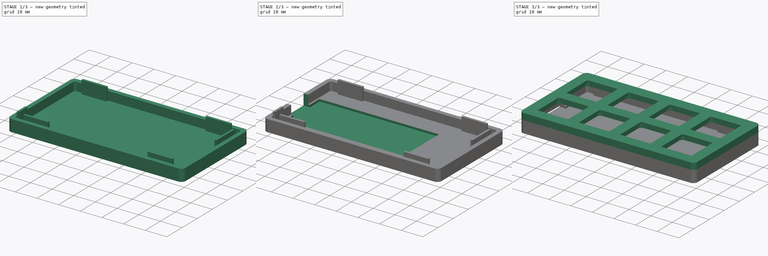
[diagram: build sequence overview — one tinted view per stage of 3, left to right]
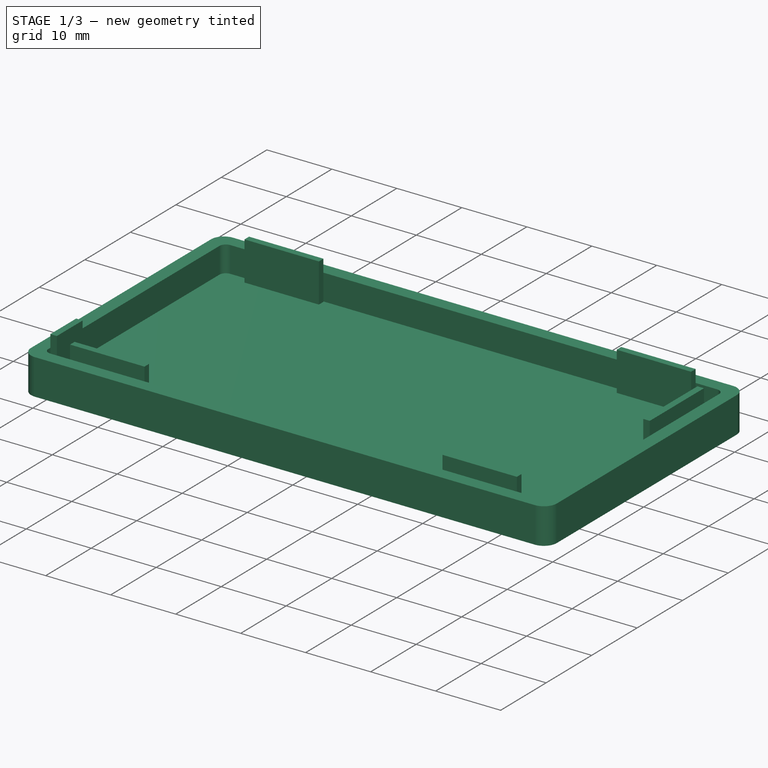
[diagram: stage 1 of 3 — iso view after this stage's code; geometry added in this stage tinted green]
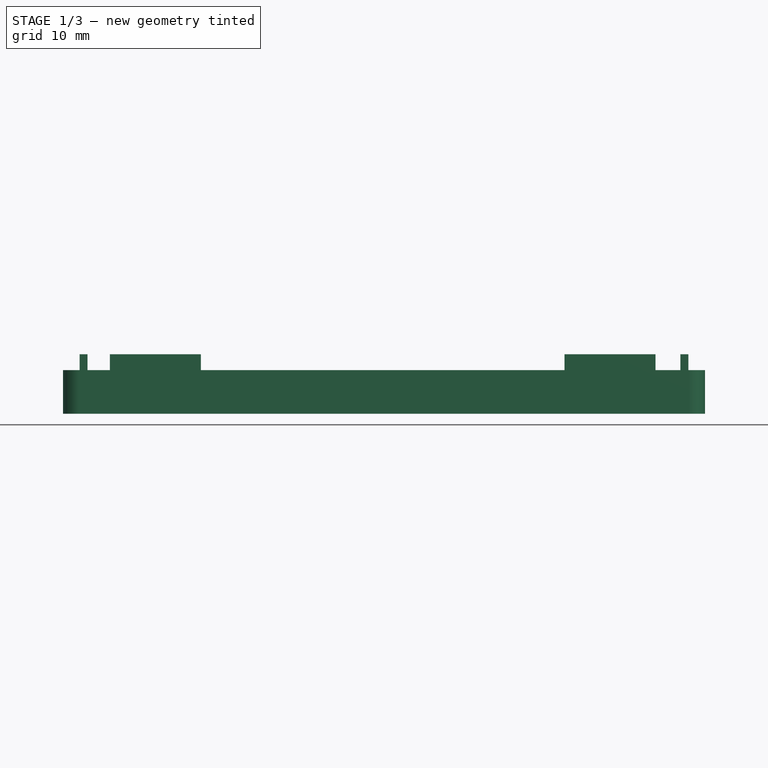
[diagram: stage 1 of 3 — front view after this stage's code; geometry added in this stage tinted green]
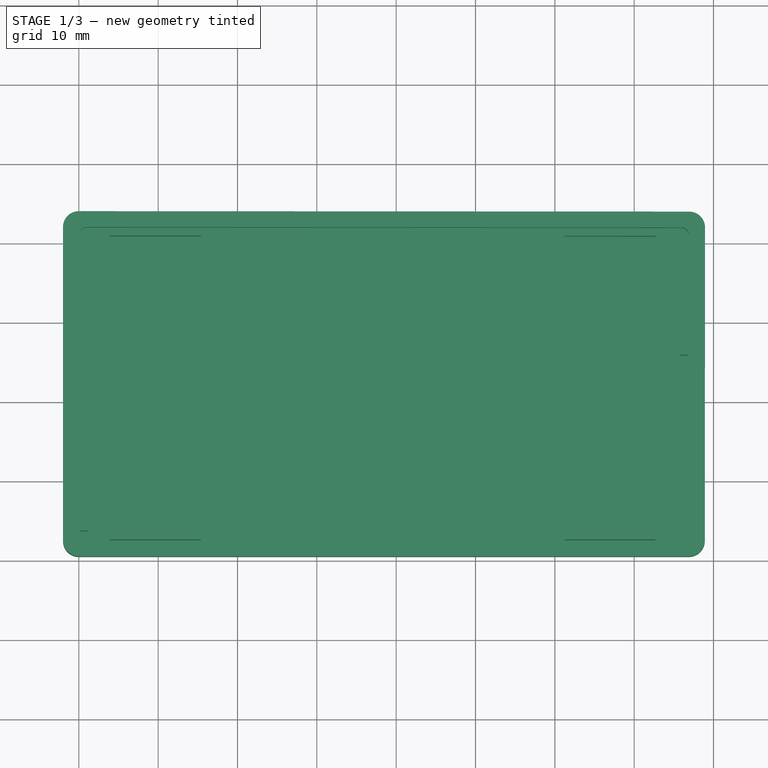
[diagram: stage 1 of 3 — top view after this stage's code; geometry added in this stage tinted green]
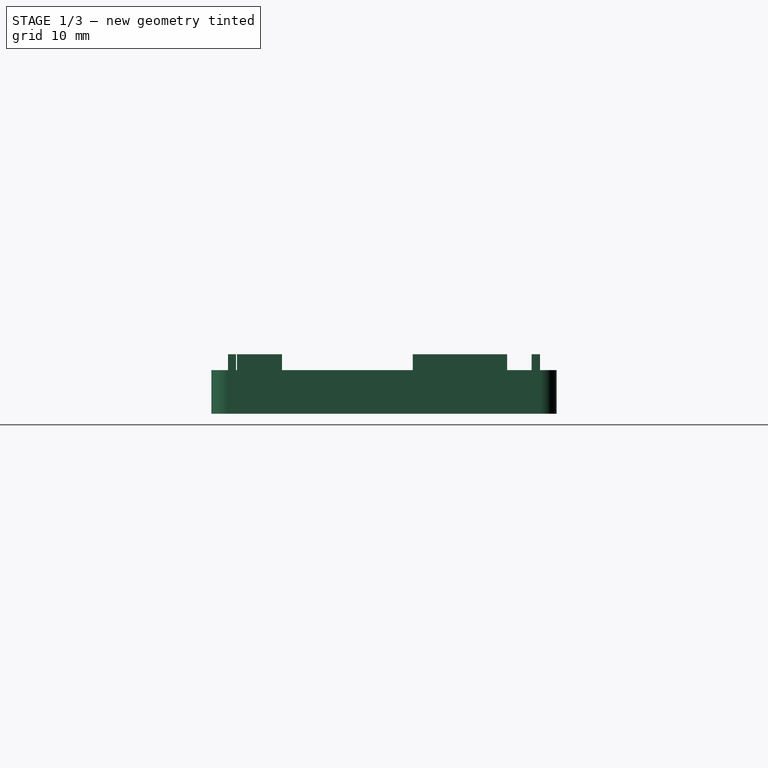
[diagram: stage 1 of 3 — right view after this stage's code; geometry added in this stage tinted green]
FCSTD DOCUMENT  (FreeCAD 0.20R29177 +426 (Git))
Label: ARTSEYIO
License: All rights reserved
LicenseURL: http://en.wikipedia.org/wiki/All_rights_reserved
objects: Sketcher::SketchObject×9, PartDesign::Pad×5, PartDesign::Pocket×3, PartDesign::Body×2
note: 27 computed .brp shape members not serialized (recipe doc carries the construction recipe); baked Part::Feature solids carry a one-line shape summary decoded from their .brp

FEATURE [PartDesign::Body] Body  label="Base_SW_D"
  Group = -> [Sketch,Pad,Sketch002,Pocket,Sketch003,Pad001]
  Origin = -> Origin
  Tip = -> Pad001
FEATURE [Sketcher::SketchObject] Sketch004  label="Sketch_contorno002"
  FullyConstrained = false
  sketch-geometry (16):
    g0: ArcOfCircle CenterX=0.999996 CenterY=-28.9893 CenterZ=0 NormalX=0 NormalY=0 NormalZ=1 AngleXU=0 Radius=1 StartAngle=1.5701 EndAngle=3.14089
    g1: LineSegment StartX=-4.22376e-06 StartY=-28.9886 StartZ=0 EndX=-0.0261956 EndY=-66.5049 EndZ=0
    g2: ArcOfCircle CenterX=0.973804 CenterY=-66.5056 CenterZ=0 NormalX=0 NormalY=0 NormalZ=1 AngleXU=0 Radius=1 StartAngle=3.14089 EndAngle=4.71239
    g3: ArcOfCircle CenterX=-3.73637e-06 CenterY=-67.5056 CenterZ=0 NormalX=0 NormalY=0 NormalZ=1 AngleXU=0 Radius=2 StartAngle=3.14159 EndAngle=4.71239
    g4: LineSegment StartX=-2 StartY=-27.9886 StartZ=0 EndX=-2 EndY=-67.5056 EndZ=0
    g5: ArcOfCircle CenterX=-3.73637e-06 CenterY=-27.9886 CenterZ=0 NormalX=0 NormalY=0 NormalZ=1 AngleXU=0 Radius=2 StartAngle=1.5701 EndAngle=3.14159
    g6: LineSegment StartX=76.9325 StartY=-26.0423 StartZ=0 EndX=0.00139253 EndY=-25.9886 EndZ=0
    g7: ArcOfCircle CenterX=76.9311 CenterY=-28.0423 CenterZ=0 NormalX=0 NormalY=0 NormalZ=1 AngleXU=0 Radius=2 StartAngle=6.28249 EndAngle=7.85328
    g8: LineSegment StartX=78.9311 StartY=-28.0437 StartZ=0 EndX=78.9036 EndY=-67.5068 EndZ=0
    g9: LineSegment StartX=76.9036 StartY=-69.5054 StartZ=0 EndX=0 EndY=-69.5056 EndZ=0
    g10: ArcOfCircle CenterX=76.9036 CenterY=-67.5054 CenterZ=0 NormalX=0 NormalY=0 NormalZ=1 AngleXU=0 Radius=2 StartAngle=4.71239 EndAngle=6.28249
    g11: LineSegment StartX=75.9311 StartY=-28.0416 StartZ=0 EndX=1.00069 EndY=-27.9893 EndZ=0
    g12: ArcOfCircle CenterX=75.9304 CenterY=-29.0416 CenterZ=0 NormalX=0 NormalY=0 NormalZ=1 AngleXU=0 Radius=1 StartAngle=6.28249 EndAngle=7.85328
    g13: LineSegment StartX=76.9304 StartY=-29.0423 StartZ=0 EndX=76.9043 EndY=-66.5061 EndZ=0
    g14: LineSegment StartX=75.9043 StartY=-67.5054 StartZ=0 EndX=0.973806 EndY=-67.5056 EndZ=0
    g15: ArcOfCircle CenterX=75.9043 CenterY=-66.5054 CenterZ=0 NormalX=0 NormalY=0 NormalZ=1 AngleXU=0 Radius=1 StartAngle=4.71239 EndAngle=6.28249
  constraints (15):
    c: Coincident(g3,g4)
    c: Coincident(g4,g5)
    c: Coincident(g3,g9)
    c: Coincident(g0,g1)
    c: Coincident(g5,g6)
    c: Coincident(g2,g14)
    c: Coincident(g0,g11)
    c: Coincident(g14,g15)
    c: Coincident(g11,g12)
    c: Coincident(g9,g10)
    c: Coincident(g13,g15)
    c: Coincident(g12,g13)
    c: Coincident(g6,g7)
    c: Coincident(g8,g10)
    c: Coincident(g7,g8)
FEATURE [Sketcher::SketchObject] Sketch005  label="Sketch_contorno003"
  FullyConstrained = false
  Placement = pos=(0,0,-4) rot=(0,0,1;0rad)
  sketch-geometry (8):
    g0: ArcOfCircle CenterX=-3.73637e-06 CenterY=-67.5056 CenterZ=0 NormalX=0 NormalY=0 NormalZ=1 AngleXU=0 Radius=2 StartAngle=3.14159 EndAngle=4.71239
    g1: LineSegment StartX=-2 StartY=-27.9886 StartZ=0 EndX=-2 EndY=-67.5056 EndZ=0
    g2: ArcOfCircle CenterX=-3.73637e-06 CenterY=-27.9886 CenterZ=0 NormalX=0 NormalY=0 NormalZ=1 AngleXU=0 Radius=2 StartAngle=1.5701 EndAngle=3.14159
    g3: LineSegment StartX=76.9325 StartY=-26.0423 StartZ=0 EndX=0.00139253 EndY=-25.9886 EndZ=0
    g4: ArcOfCircle CenterX=76.9311 CenterY=-28.0423 CenterZ=0 NormalX=0 NormalY=0 NormalZ=1 AngleXU=0 Radius=2 StartAngle=6.28249 EndAngle=7.85328
    g5: LineSegment StartX=78.9311 StartY=-28.0437 StartZ=0 EndX=78.9036 EndY=-67.5068 EndZ=0
    g6: LineSegment StartX=76.9036 StartY=-69.5054 StartZ=0 EndX=0 EndY=-69.5056 EndZ=0
    g7: ArcOfCircle CenterX=76.9036 CenterY=-67.5054 CenterZ=0 NormalX=0 NormalY=0 NormalZ=1 AngleXU=0 Radius=2 StartAngle=4.71239 EndAngle=6.28249
  constraints (8):
    c: Coincident(g0,g1)
    c: Coincident(g1,g2)
    c: Coincident(g0,g6)
    c: Coincident(g2,g3)
    c: Coincident(g6,g7)
    c: Coincident(g3,g4)
    c: Coincident(g5,g7)
    c: Coincident(g4,g5)
FEATURE [PartDesign::Pad] Pad002
  Direction = (0,0,1)
  Length = 4
  Length2 = 10
  Profile = -> Sketch004
  ReferenceAxis = -> Sketch004 [N_Axis]
  Reversed = true
  Type = 0
FEATURE [PartDesign::Pad] Pad003
  BaseFeature = -> Pad002
  Direction = (0,0,1)
  Length = 1.5
  Length2 = 10
  Profile = -> Sketch005
  ReferenceAxis = -> Sketch005 [N_Axis]
  Reversed = true
  Type = 0
FEATURE [Sketcher::SketchObject] Sketch006  label="Sketch_contorno004"
  FullyConstrained = false
  Placement = pos=(0,0,-4) rot=(0,0,1;0rad)
  sketch-geometry (24):
    g0: LineSegment StartX=15.3732 StartY=-67.4055 StartZ=0 EndX=15.3739 EndY=-66.4055 EndZ=0
    g1: LineSegment StartX=15.3732 StartY=-67.4055 StartZ=0 EndX=3.9183 EndY=-67.4056 EndZ=0
    g2: LineSegment StartX=15.3739 StartY=-66.4055 StartZ=0 EndX=3.919 EndY=-66.4056 EndZ=0
    g3: LineSegment StartX=3.9183 StartY=-67.4056 StartZ=0 EndX=3.919 EndY=-66.4056 EndZ=0
    g4: LineSegment StartX=72.6781 StartY=-67.4055 StartZ=0 EndX=72.6788 EndY=-66.4055 EndZ=0
    g5: LineSegment StartX=72.6781 StartY=-67.4055 StartZ=0 EndX=61.2233 EndY=-67.4056 EndZ=0
    g6: LineSegment StartX=72.6788 StartY=-66.4055 StartZ=0 EndX=61.224 EndY=-66.4056 EndZ=0
    g7: LineSegment StartX=61.2233 StartY=-67.4056 StartZ=0 EndX=61.224 EndY=-66.4056 EndZ=0
    g8: LineSegment StartX=15.3872 StartY=-28.0989 StartZ=0 EndX=15.3872 EndY=-29.0989 EndZ=0
    g9: LineSegment StartX=15.3872 StartY=-28.0989 StartZ=0 EndX=3.93234 EndY=-28.0907 EndZ=0
    g10: LineSegment StartX=15.3872 StartY=-29.0989 StartZ=0 EndX=3.93233 EndY=-29.0907 EndZ=0
    g11: LineSegment StartX=3.93234 StartY=-28.0907 StartZ=0 EndX=3.93233 EndY=-29.0907 EndZ=0
    g12: LineSegment StartX=72.6921 StartY=-28.1398 StartZ=0 EndX=72.6921 EndY=-29.1398 EndZ=0
    g13: LineSegment StartX=72.6921 StartY=-28.1398 StartZ=0 EndX=61.2373 EndY=-28.1316 EndZ=0
    g14: LineSegment StartX=72.6921 StartY=-29.1398 StartZ=0 EndX=61.2373 EndY=-29.1316 EndZ=0
    g15: LineSegment StartX=61.2373 StartY=-28.1316 StartZ=0 EndX=61.2373 EndY=-29.1316 EndZ=0
    g16: LineSegment StartX=76.833 StartY=-32.2305 StartZ=0 EndX=75.833 EndY=-32.2298 EndZ=0
    g17: LineSegment StartX=76.833 StartY=-32.2305 StartZ=0 EndX=76.8247 EndY=-44.1239 EndZ=0
    g18: LineSegment StartX=75.833 StartY=-32.2298 StartZ=0 EndX=75.8247 EndY=-44.1232 EndZ=0
    g19: LineSegment StartX=76.8247 StartY=-44.1239 StartZ=0 EndX=75.8247 EndY=-44.1232 EndZ=0
    g20: LineSegment StartX=0.0961904 StartY=-66.2743 StartZ=0 EndX=1.09619 EndY=-66.2743 EndZ=0
    g21: LineSegment StartX=0.0960912 StartY=-60.5987 StartZ=0 EndX=0.0961904 EndY=-66.2743 EndZ=0
    g22: LineSegment StartX=1.09609 StartY=-60.5986 StartZ=0 EndX=1.09619 EndY=-66.2743 EndZ=0
    g23: LineSegment StartX=0.0960912 StartY=-60.5987 StartZ=0 EndX=1.09609 EndY=-60.5986 EndZ=0
  constraints (24):
    c: Coincident(g20,g21)
    c: Coincident(g21,g23)
    c: Coincident(g20,g22)
    c: Coincident(g22,g23)
    c: Coincident(g1,g3)
    c: Coincident(g2,g3)
    c: Coincident(g10,g11)
    c: Coincident(g9,g11)
    c: Coincident(g0,g1)
    c: Coincident(g0,g2)
    c: Coincident(g8,g10)
    c: Coincident(g8,g9)
    c: Coincident(g5,g7)
    c: Coincident(g6,g7)
    c: Coincident(g14,g15)
    c: Coincident(g13,g15)
    c: Coincident(g4,g5)
    c: Coincident(g4,g6)
    c: Coincident(g12,g14)
    c: Coincident(g12,g13)
    c: Coincident(g18,g19)
    c: Coincident(g16,g18)
    c: Coincident(g17,g19)
    c: Coincident(g16,g17)
FEATURE [PartDesign::Pad] Pad004
  BaseFeature = -> Pad003
  Direction = (0,0,1)
  Length = 6
  Length2 = 1.5
  Profile = -> Sketch006
  ReferenceAxis = -> Sketch006 [N_Axis]
  Type = 4
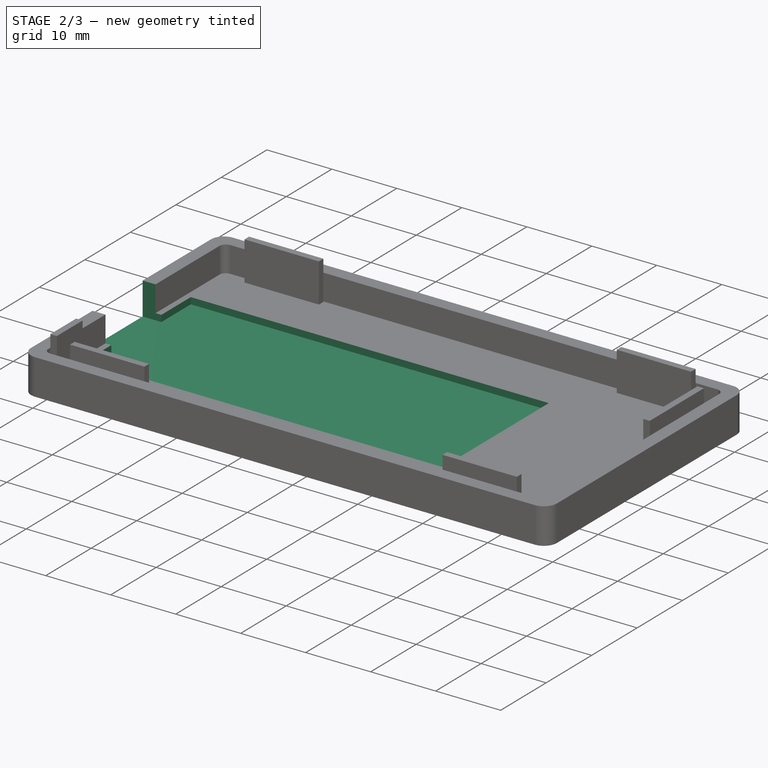
[diagram: stage 2 of 3 — iso view after this stage's code; geometry added in this stage tinted green]
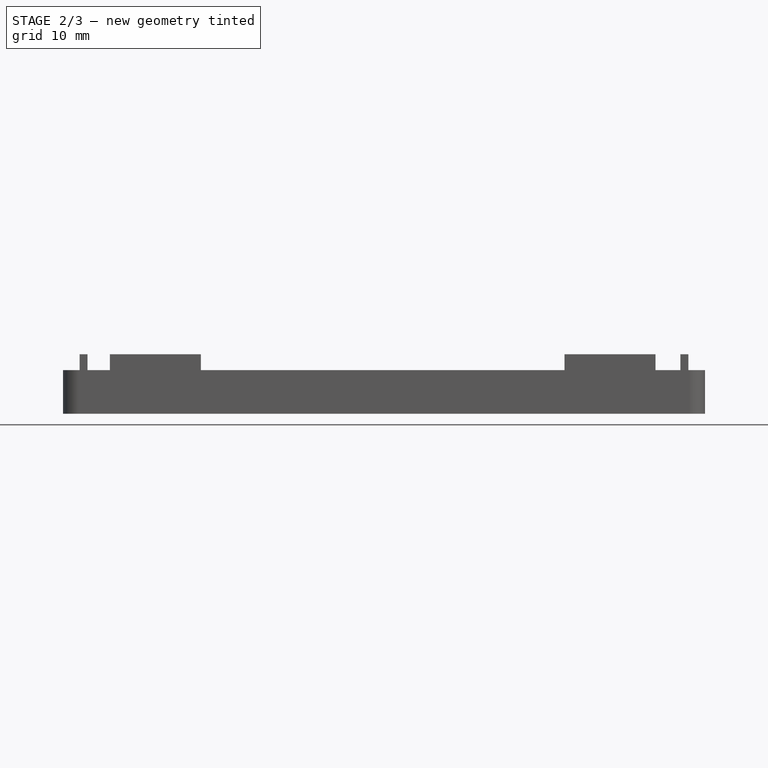
[diagram: stage 2 of 3 — front view after this stage's code; geometry added in this stage tinted green]
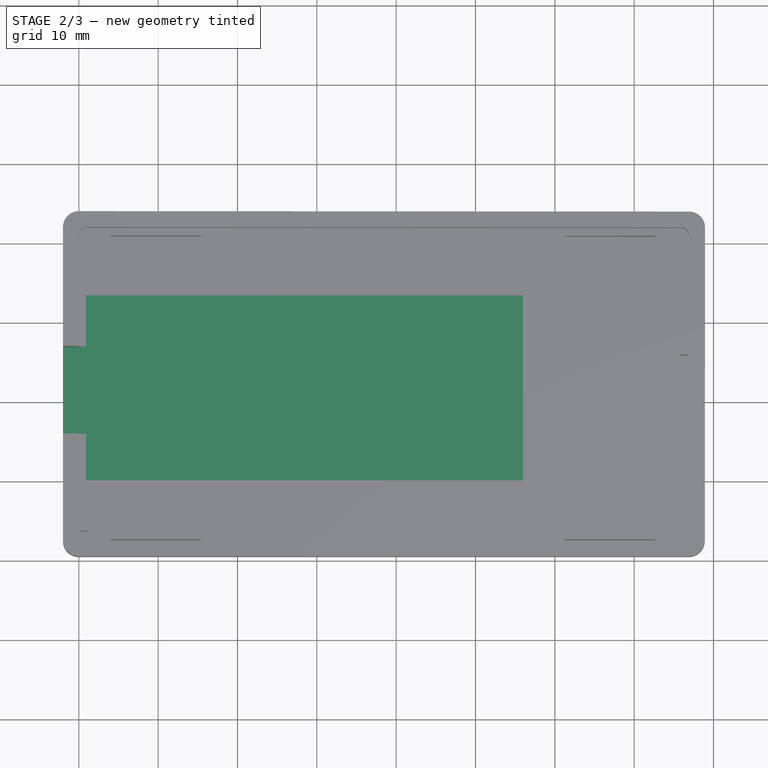
[diagram: stage 2 of 3 — top view after this stage's code; geometry added in this stage tinted green]
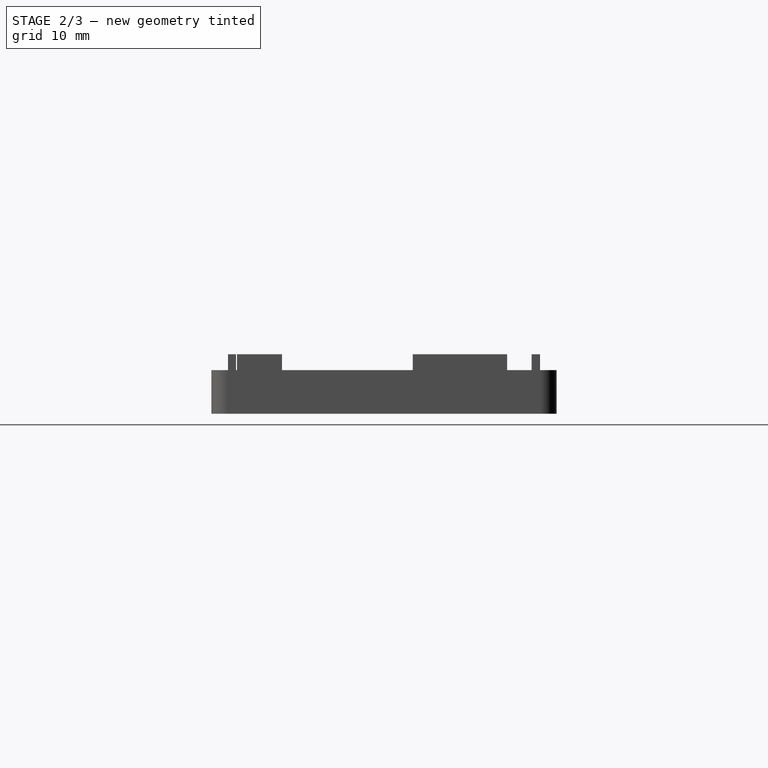
[diagram: stage 2 of 3 — right view after this stage's code; geometry added in this stage tinted green]
FEATURE [Sketcher::SketchObject] Sketch007
  FullyConstrained = false
  Placement = pos=(0,0,-4) rot=(0,0,1;0rad)
  sketch-geometry (4):
    g0: LineSegment StartX=0.884956 StartY=-36.5387 StartZ=0 EndX=0.884956 EndY=-59.8387 EndZ=0
    g1: LineSegment StartX=0.884956 StartY=-59.8387 StartZ=0 EndX=55.985 EndY=-59.8387 EndZ=0
    g2: LineSegment StartX=0.884956 StartY=-36.5387 StartZ=0 EndX=55.985 EndY=-36.5387 EndZ=0
    g3: LineSegment StartX=55.985 StartY=-36.5387 StartZ=0 EndX=55.985 EndY=-59.8387 EndZ=0
FEATURE [PartDesign::Pocket] Pocket001
  BaseFeature = -> Pad004
  Direction = (0,0,-1)
  Length = 1
  Length2 = 5
  Profile = -> Sketch007
  ReferenceAxis = -> Sketch007 [N_Axis]
  Type = 0
FEATURE [Sketcher::SketchObject] Sketch008
  FullyConstrained = true
  MapMode = 5
  Placement = pos=(-2,0,0) rot=(0.57735,-0.57735,-0.57735;2.0944rad)
  Support = -> [Pocket001]
  sketch-geometry (4):
    g0: LineSegment StartX=43 StartY=-1e-16 StartZ=0 EndX=54 EndY=-1e-16 EndZ=0
    g1: LineSegment StartX=54 StartY=-1e-16 StartZ=0 EndX=54 EndY=-5 EndZ=0
    g2: LineSegment StartX=54 StartY=-5 StartZ=0 EndX=43 EndY=-5 EndZ=0
    g3: LineSegment StartX=43 StartY=-5 StartZ=0 EndX=43 EndY=0 EndZ=0
  constraints (12):
    c: Coincident(g0,g1)
    c: Coincident(g1,g2)
    c: Coincident(g2,g3)
    c: Coincident(g3,g0)
    c: Horizontal(g0)
    c: Horizontal(g2)
    c: Vertical(g1)
    c: Vertical(g3)
    c: DistanceX(g0,g0) = 11
    c: DistanceY(g1,g1) = 5
    c: DistanceX(g-1,g2) = 43
    c: DistanceY(g2,g-1) = 5
FEATURE [PartDesign::Pocket] Pocket002
  BaseFeature = -> Pocket001
  Direction = (1,0,0)
  Length = 5
  Length2 = 5
  Profile = -> Sketch008
  ReferenceAxis = -> Sketch008 [N_Axis]
  Type = 0
FEATURE [PartDesign::Body] Body001  label="Base_MC"
  Group = -> [Sketch004,Pad002,Sketch005,Pad003,Sketch006,Pad004,Sketch007,Pocket001,Sketch008,Pocket002]
  Origin = -> Origin001
  Placement = pos=(0,0,-5) rot=(0,0,1;0rad)
  Tip = -> Pocket002
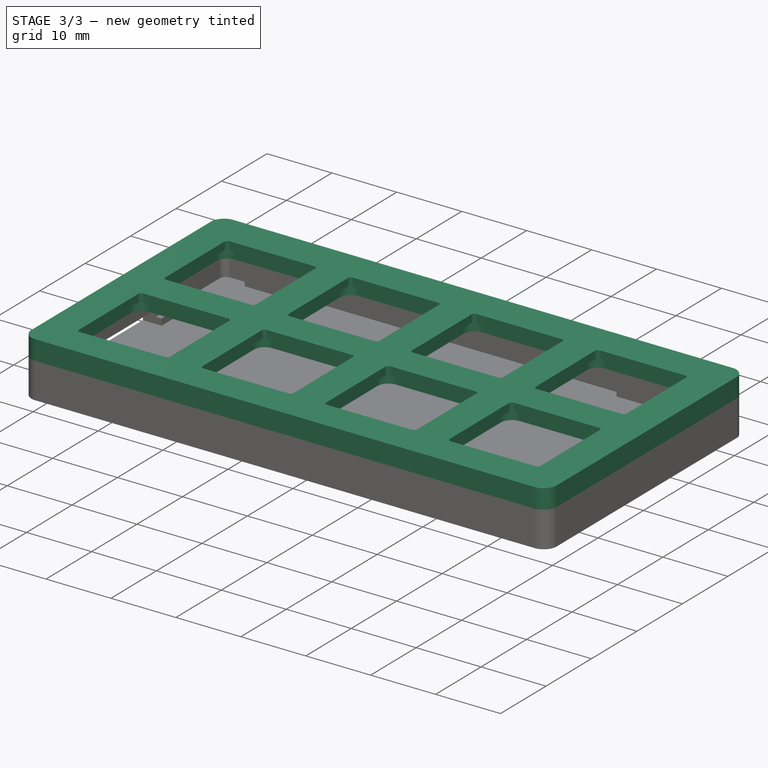
[diagram: stage 3 of 3 — iso view after this stage's code; geometry added in this stage tinted green]
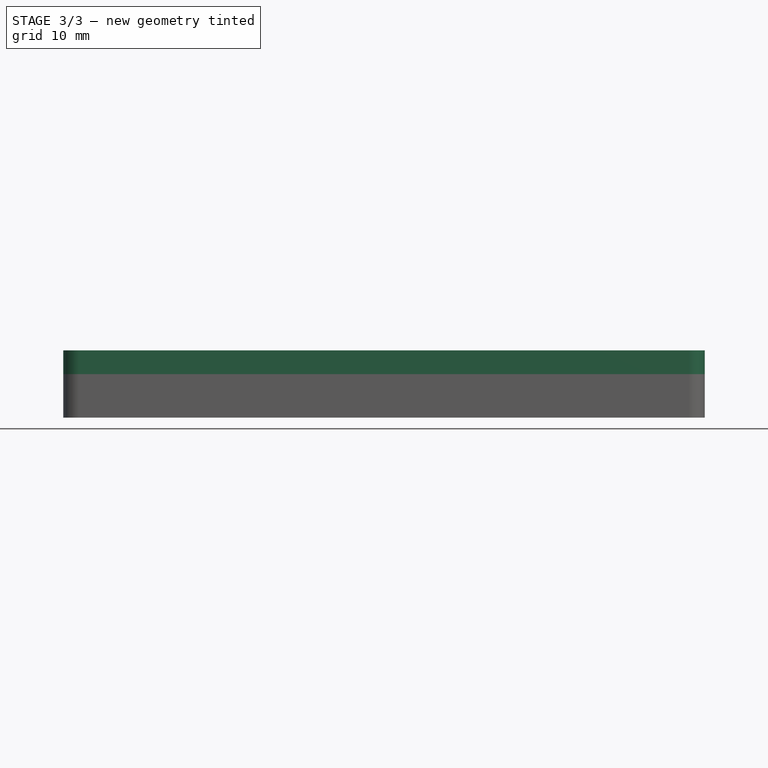
[diagram: stage 3 of 3 — front view after this stage's code; geometry added in this stage tinted green]
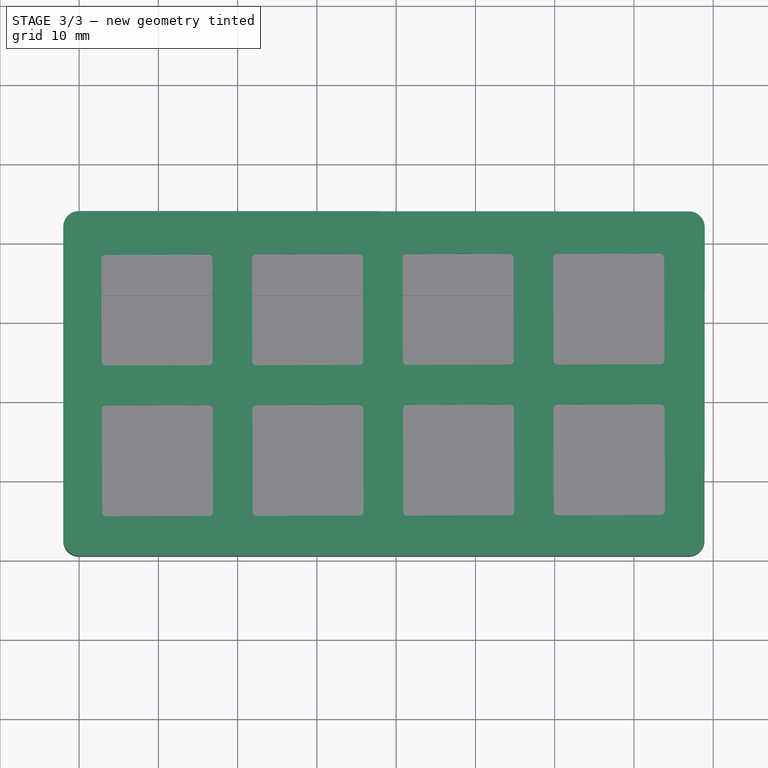
[diagram: stage 3 of 3 — top view after this stage's code; geometry added in this stage tinted green]
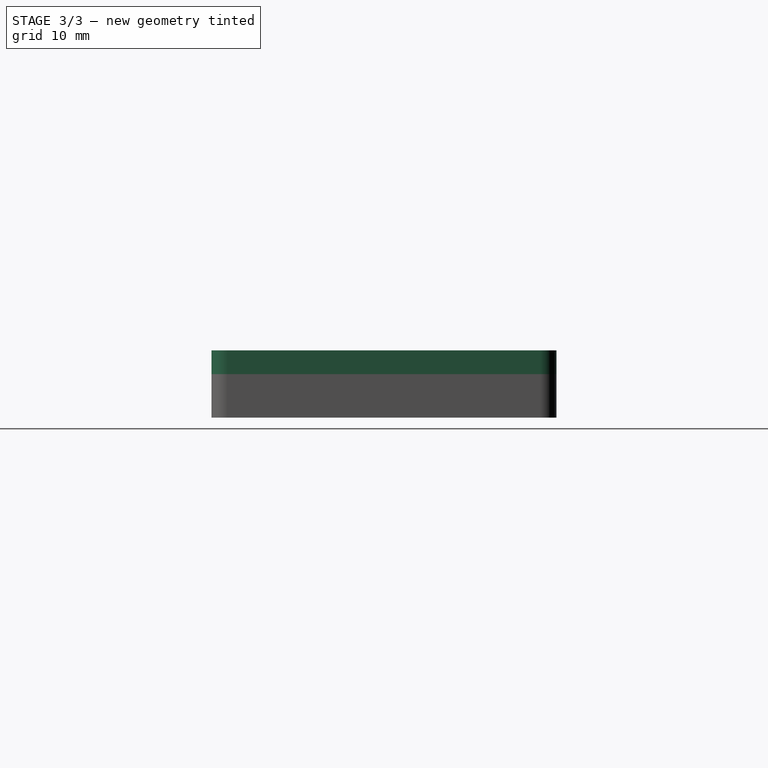
[diagram: stage 3 of 3 — right view after this stage's code; geometry added in this stage tinted green]
FEATURE [Sketcher::SketchObject] Sketch  label="Sketch_topo"
  FullyConstrained = false
  sketch-geometry (72):
    g0: LineSegment StartX=2.8079 StartY=-31.9904 StartZ=0 EndX=2.8442 EndY=-44.9903 EndZ=0
    g1: LineSegment StartX=16.3455 StartY=-45.4435 StartZ=0 EndX=3.3456 EndY=-45.4889 EndZ=0
    g2: LineSegment StartX=16.8078 StartY=-31.9513 StartZ=0 EndX=16.8441 EndY=-44.9421 EndZ=0
    g3: LineSegment StartX=16.3065 StartY=-31.4527 StartZ=0 EndX=3.3065 EndY=-31.489 EndZ=0
    g4: ArcOfCircle CenterX=16.3078 CenterY=-31.9527 CenterZ=0 NormalX=0 NormalY=0 NormalZ=1 AngleXU=0 Radius=0.500001 StartAngle=0.00279253 EndAngle=1.57359
    g5: ArcOfCircle CenterX=3.3442 CenterY=-44.9889 CenterZ=0 NormalX=0 NormalY=0 NormalZ=1 AngleXU=0 Radius=0.500001 StartAngle=3.14439 EndAngle=4.71518
    g6: ArcOfCircle CenterX=3.3079 CenterY=-31.989 CenterZ=0 NormalX=0 NormalY=0 NormalZ=1 AngleXU=0 Radius=0.500001 StartAngle=1.57359 EndAngle=3.14438
    g7: ArcOfCircle CenterX=16.3441 CenterY=-44.9435 CenterZ=0 NormalX=0 NormalY=0 NormalZ=1 AngleXU=0 Radius=0.500001 StartAngle=4.71518 EndAngle=6.28598
    g8: LineSegment StartX=16.3596 StartY=-50.4706 StartZ=0 EndX=3.35961 EndY=-50.5069 EndZ=0
    g9: LineSegment StartX=16.861 StartY=-50.9692 StartZ=0 EndX=16.8972 EndY=-63.9602 EndZ=0
    g10: LineSegment StartX=2.86101 StartY=-51.0083 StartZ=0 EndX=2.89731 EndY=-64.0083 EndZ=0
    g11: LineSegment StartX=16.3986 StartY=-64.4616 StartZ=0 EndX=3.39871 EndY=-64.5069 EndZ=0
    g12: ArcOfCircle CenterX=16.361 CenterY=-50.9706 CenterZ=0 NormalX=0 NormalY=0 NormalZ=1 AngleXU=0 Radius=0.500001 StartAngle=0.00279253 EndAngle=1.57359
    g13: ArcOfCircle CenterX=3.39731 CenterY=-64.0069 CenterZ=0 NormalX=0 NormalY=0 NormalZ=1 AngleXU=0 Radius=0.500001 StartAngle=3.14439 EndAngle=4.71518
    g14: ArcOfCircle CenterX=3.36101 CenterY=-51.0069 CenterZ=0 NormalX=0 NormalY=0 NormalZ=1 AngleXU=0 Radius=0.500001 StartAngle=1.57359 EndAngle=3.14438
    g15: ArcOfCircle CenterX=16.3972 CenterY=-63.9616 CenterZ=0 NormalX=0 NormalY=0 NormalZ=1 AngleXU=0 Radius=0.500001 StartAngle=4.71518 EndAngle=6.28598
    g16: ArcOfCircle CenterX=-3.73637e-06 CenterY=-67.5056 CenterZ=0 NormalX=0 NormalY=0 NormalZ=1 AngleXU=0 Radius=2 StartAngle=3.14159 EndAngle=4.71239
    g17: LineSegment StartX=-2 StartY=-27.9886 StartZ=0 EndX=-2 EndY=-67.5056 EndZ=0
    g18: ArcOfCircle CenterX=-3.73637e-06 CenterY=-27.9886 CenterZ=0 NormalX=0 NormalY=0 NormalZ=1 AngleXU=0 Radius=2 StartAngle=1.5701 EndAngle=3.14159
    g19: LineSegment StartX=21.8078 StartY=-31.9513 StartZ=0 EndX=21.8441 EndY=-44.9512 EndZ=0
    g20: LineSegment StartX=35.3455 StartY=-45.4044 StartZ=0 EndX=22.3455 EndY=-45.4498 EndZ=0
    g21: LineSegment StartX=35.8078 StartY=-31.9122 StartZ=0 EndX=35.8441 EndY=-44.903 EndZ=0
    g22: LineSegment StartX=35.3064 StartY=-31.4136 StartZ=0 EndX=22.3064 EndY=-31.4499 EndZ=0
    g23: ArcOfCircle CenterX=35.3078 CenterY=-31.9136 CenterZ=0 NormalX=0 NormalY=0 NormalZ=1 AngleXU=0 Radius=0.500001 StartAngle=0.00279253 EndAngle=1.57359
    g24: ArcOfCircle CenterX=22.3441 CenterY=-44.9498 CenterZ=0 NormalX=0 NormalY=0 NormalZ=1 AngleXU=0 Radius=0.500001 StartAngle=3.14439 EndAngle=4.71518
    g25: ArcOfCircle CenterX=22.3078 CenterY=-31.9499 CenterZ=0 NormalX=0 NormalY=0 NormalZ=1 AngleXU=0 Radius=0.500001 StartAngle=1.57359 EndAngle=3.14438
    g26: ArcOfCircle CenterX=35.3441 CenterY=-44.9044 CenterZ=0 NormalX=0 NormalY=0 NormalZ=1 AngleXU=0 Radius=0.500001 StartAngle=4.71518 EndAngle=6.28598
    g27: LineSegment StartX=35.3595 StartY=-50.4315 StartZ=0 EndX=22.3596 EndY=-50.4678 EndZ=0
    g28: LineSegment StartX=35.8609 StartY=-50.9301 StartZ=0 EndX=35.8972 EndY=-63.9211 EndZ=0
    g29: LineSegment StartX=21.861 StartY=-50.9692 StartZ=0 EndX=21.8973 EndY=-63.9692 EndZ=0
    g30: LineSegment StartX=35.3986 StartY=-64.4225 StartZ=0 EndX=22.3987 EndY=-64.4678 EndZ=0
    g31: ArcOfCircle CenterX=35.3609 CenterY=-50.9315 CenterZ=0 NormalX=0 NormalY=0 NormalZ=1 AngleXU=0 Radius=0.500001 StartAngle=0.00279253 EndAngle=1.57359
    g32: ArcOfCircle CenterX=22.3973 CenterY=-63.9678 CenterZ=0 NormalX=0 NormalY=0 NormalZ=1 AngleXU=0 Radius=0.500001 StartAngle=3.14439 EndAngle=4.71518
    g33: ArcOfCircle CenterX=22.361 CenterY=-50.9678 CenterZ=0 NormalX=0 NormalY=0 NormalZ=1 AngleXU=0 Radius=0.500001 StartAngle=1.57359 EndAngle=3.14438
    g34: ArcOfCircle CenterX=35.3972 CenterY=-63.9225 CenterZ=0 NormalX=0 NormalY=0 NormalZ=1 AngleXU=0 Radius=0.500001 StartAngle=4.71518 EndAngle=6.28598
    g35: LineSegment StartX=40.8078 StartY=-31.9122 StartZ=0 EndX=40.8441 EndY=-44.9121 EndZ=0
    g36: LineSegment StartX=54.3454 StartY=-45.3653 StartZ=0 EndX=41.3455 EndY=-45.4107 EndZ=0
    g37: LineSegment StartX=54.8077 StartY=-31.8731 StartZ=0 EndX=54.844 EndY=-44.8639 EndZ=0
    g38: LineSegment StartX=54.3063 StartY=-31.3745 StartZ=0 EndX=41.3064 EndY=-31.4108 EndZ=0
    g39: ArcOfCircle CenterX=54.3077 CenterY=-31.8745 CenterZ=0 NormalX=0 NormalY=0 NormalZ=1 AngleXU=0 Radius=0.500001 StartAngle=0.00279253 EndAngle=1.57359
    g40: ArcOfCircle CenterX=41.3441 CenterY=-44.9107 CenterZ=0 NormalX=0 NormalY=0 NormalZ=1 AngleXU=0 Radius=0.500001 StartAngle=3.14439 EndAngle=4.71518
    g41: ArcOfCircle CenterX=41.3078 CenterY=-31.9108 CenterZ=0 NormalX=0 NormalY=0 NormalZ=1 AngleXU=0 Radius=0.500001 StartAngle=1.57359 EndAngle=3.14438
    g42: ArcOfCircle CenterX=54.344 CenterY=-44.8653 CenterZ=0 NormalX=0 NormalY=0 NormalZ=1 AngleXU=0 Radius=0.5 StartAngle=4.71518 EndAngle=6.28598
    g43: LineSegment StartX=54.3595 StartY=-50.3924 StartZ=0 EndX=41.3595 EndY=-50.4287 EndZ=0
    g44: LineSegment StartX=54.8608 StartY=-50.891 StartZ=0 EndX=54.8971 EndY=-63.882 EndZ=0
    g45: LineSegment StartX=40.8609 StartY=-50.9301 StartZ=0 EndX=40.8972 EndY=-63.9301 EndZ=0
    g46: LineSegment StartX=54.3985 StartY=-64.3834 StartZ=0 EndX=41.3986 EndY=-64.4287 EndZ=0
    g47: ArcOfCircle CenterX=54.3608 CenterY=-50.8924 CenterZ=0 NormalX=0 NormalY=0 NormalZ=1 AngleXU=0 Radius=0.500001 StartAngle=0.00279253 EndAngle=1.57359
    g48: ArcOfCircle CenterX=41.3972 CenterY=-63.9287 CenterZ=0 NormalX=0 NormalY=0 NormalZ=1 AngleXU=0 Radius=0.500001 StartAngle=3.14439 EndAngle=4.71518
    g49: ArcOfCircle CenterX=41.3609 CenterY=-50.9287 CenterZ=0 NormalX=0 NormalY=0 NormalZ=1 AngleXU=0 Radius=0.500001 StartAngle=1.57359 EndAngle=3.14438
    g50: ArcOfCircle CenterX=54.3971 CenterY=-63.8834 CenterZ=0 NormalX=0 NormalY=0 NormalZ=1 AngleXU=0 Radius=0.500001 StartAngle=4.71518 EndAngle=6.28598
    g51: LineSegment StartX=59.8077 StartY=-31.8731 StartZ=0 EndX=59.844 EndY=-44.8731 EndZ=0
    g52: LineSegment StartX=73.3454 StartY=-45.3262 StartZ=0 EndX=60.3454 EndY=-45.3717 EndZ=0
    g53: LineSegment StartX=73.8077 StartY=-31.834 StartZ=0 EndX=73.844 EndY=-44.8249 EndZ=0
    g54: LineSegment StartX=73.3063 StartY=-31.3354 StartZ=0 EndX=60.3063 EndY=-31.3717 EndZ=0
    g55: ArcOfCircle CenterX=73.3077 CenterY=-31.8354 CenterZ=0 NormalX=0 NormalY=0 NormalZ=1 AngleXU=0 Radius=0.500001 StartAngle=0.00279253 EndAngle=1.57359
    g56: ArcOfCircle CenterX=60.344 CenterY=-44.8717 CenterZ=0 NormalX=0 NormalY=0 NormalZ=1 AngleXU=0 Radius=0.500001 StartAngle=3.14439 EndAngle=4.71518
    g57: ArcOfCircle CenterX=60.3077 CenterY=-31.8717 CenterZ=0 NormalX=0 NormalY=0 NormalZ=1 AngleXU=0 Radius=0.500001 StartAngle=1.57359 EndAngle=3.14438
    g58: ArcOfCircle CenterX=73.344 CenterY=-44.8263 CenterZ=0 NormalX=0 NormalY=0 NormalZ=1 AngleXU=0 Radius=0.500001 StartAngle=4.71518 EndAngle=6.28598
    g59: LineSegment StartX=73.3594 StartY=-50.3533 StartZ=0 EndX=60.3595 EndY=-50.3896 EndZ=0
    g60: LineSegment StartX=73.8608 StartY=-50.8519 StartZ=0 EndX=73.8971 EndY=-63.8429 EndZ=0
    g61: LineSegment StartX=59.8608 StartY=-50.891 StartZ=0 EndX=59.8972 EndY=-63.891 EndZ=0
    g62: LineSegment StartX=73.3985 StartY=-64.3443 StartZ=0 EndX=60.3985 EndY=-64.3896 EndZ=0
    g63: ArcOfCircle CenterX=73.3608 CenterY=-50.8533 CenterZ=0 NormalX=0 NormalY=0 NormalZ=1 AngleXU=0 Radius=0.500001 StartAngle=0.00279253 EndAngle=1.57359
    g64: ArcOfCircle CenterX=60.3972 CenterY=-63.8896 CenterZ=0 NormalX=0 NormalY=0 NormalZ=1 AngleXU=0 Radius=0.500001 StartAngle=3.14439 EndAngle=4.71518
    g65: ArcOfCircle CenterX=60.3608 CenterY=-50.8896 CenterZ=0 NormalX=0 NormalY=0 NormalZ=1 AngleXU=0 Radius=0.500001 StartAngle=1.57359 EndAngle=3.14438
    g66: ArcOfCircle CenterX=73.3971 CenterY=-63.8443 CenterZ=0 NormalX=0 NormalY=0 NormalZ=1 AngleXU=0 Radius=0.500001 StartAngle=4.71518 EndAngle=6.28598
    g67: LineSegment StartX=76.9325 StartY=-26.0423 StartZ=0 EndX=0.00139253 EndY=-25.9886 EndZ=0
    g68: ArcOfCircle CenterX=76.9311 CenterY=-28.0423 CenterZ=0 NormalX=0 NormalY=0 NormalZ=1 AngleXU=0 Radius=2 StartAngle=6.28249 EndAngle=7.85328
    g69: LineSegment StartX=78.9311 StartY=-28.0437 StartZ=0 EndX=78.9036 EndY=-67.5068 EndZ=0
    g70: LineSegment StartX=76.9036 StartY=-69.5054 StartZ=0 EndX=0 EndY=-69.5056 EndZ=0
    g71: ArcOfCircle CenterX=76.9036 CenterY=-67.5054 CenterZ=0 NormalX=0 NormalY=0 NormalZ=1 AngleXU=0 Radius=2 StartAngle=4.71239 EndAngle=6.28249
  constraints (72):
    c: Coincident(g16,g17)
    c: Coincident(g17,g18)
    c: Coincident(g16,g70)
    c: Coincident(g18,g67)
    c: Coincident(g0,g6)
    c: Coincident(g0,g5)
    c: Coincident(g10,g14)
    c: Coincident(g10,g13)
    c: Coincident(g3,g6)
    c: Coincident(g1,g5)
    c: Coincident(g8,g14)
    c: Coincident(g11,g13)
    c: Coincident(g3,g4)
    c: Coincident(g1,g7)
    c: Coincident(g8,g12)
    c: Coincident(g11,g15)
    c: Coincident(g2,g4)
    c: Coincident(g2,g7)
    c: Coincident(g9,g12)
    c: Coincident(g9,g15)
    c: Coincident(g19,g25)
    c: Coincident(g19,g24)
    c: Coincident(g29,g33)
    c: Coincident(g29,g32)
    c: Coincident(g22,g25)
    c: Coincident(g20,g24)
    c: Coincident(g27,g33)
    c: Coincident(g30,g32)
    c: Coincident(g22,g23)
    c: Coincident(g20,g26)
    c: Coincident(g27,g31)
    c: Coincident(g30,g34)
    c: Coincident(g21,g23)
    c: Coincident(g21,g26)
    c: Coincident(g28,g31)
    c: Coincident(g28,g34)
    c: Coincident(g35,g41)
    c: Coincident(g35,g40)
    c: Coincident(g45,g49)
    c: Coincident(g45,g48)
    c: Coincident(g38,g41)
    c: Coincident(g36,g40)
    c: Coincident(g43,g49)
    c: Coincident(g46,g48)
    c: Coincident(g38,g39)
    c: Coincident(g36,g42)
    c: Coincident(g43,g47)
    c: Coincident(g46,g50)
    c: Coincident(g37,g39)
    c: Coincident(g37,g42)
    c: Coincident(g44,g47)
    c: Coincident(g44,g50)
    c: Coincident(g51,g57)
    c: Coincident(g51,g56)
    c: Coincident(g61,g65)
    c: Coincident(g61,g64)
    c: Coincident(g54,g57)
    c: Coincident(g52,g56)
    c: Coincident(g59,g65)
    c: Coincident(g62,g64)
    c: Coincident(g54,g55)
    c: Coincident(g52,g58)
    c: Coincident(g59,g63)
    c: Coincident(g62,g66)
    c: Coincident(g53,g55)
    c: Coincident(g53,g58)
    c: Coincident(g60,g63)
    c: Coincident(g60,g66)
    c: Coincident(g70,g71)
    c: Coincident(g67,g68)
    c: Coincident(g69,g71)
    c: Coincident(g68,g69)
FEATURE [Sketcher::SketchObject] Sketch001  label="Sketch_contorno"
  FullyConstrained = false
  sketch-geometry (40):
    g0: ArcOfCircle CenterX=0.999996 CenterY=-28.9893 CenterZ=0 NormalX=0 NormalY=0 NormalZ=1 AngleXU=0 Radius=1 StartAngle=1.5701 EndAngle=3.14089
    g1: LineSegment StartX=15.3732 StartY=-67.4055 StartZ=0 EndX=15.3739 EndY=-66.4055 EndZ=0
    g2: LineSegment StartX=15.3732 StartY=-67.4055 StartZ=0 EndX=3.9183 EndY=-67.4056 EndZ=0
    g3: LineSegment StartX=15.3739 StartY=-66.4055 StartZ=0 EndX=3.919 EndY=-66.4056 EndZ=0
    g4: LineSegment StartX=3.9183 StartY=-67.4056 StartZ=0 EndX=3.919 EndY=-66.4056 EndZ=0
    g5: LineSegment StartX=-4.22376e-06 StartY=-28.9886 StartZ=0 EndX=-0.0261956 EndY=-66.5049 EndZ=0
    g6: ArcOfCircle CenterX=0.973804 CenterY=-66.5056 CenterZ=0 NormalX=0 NormalY=0 NormalZ=1 AngleXU=0 Radius=1 StartAngle=3.14089 EndAngle=4.71239
    g7: ArcOfCircle CenterX=-3.73637e-06 CenterY=-67.5056 CenterZ=0 NormalX=0 NormalY=0 NormalZ=1 AngleXU=0 Radius=2 StartAngle=3.14159 EndAngle=4.71239
    g8: LineSegment StartX=-2 StartY=-27.9886 StartZ=0 EndX=-2 EndY=-67.5056 EndZ=0
    g9: ArcOfCircle CenterX=-3.73637e-06 CenterY=-27.9886 CenterZ=0 NormalX=0 NormalY=0 NormalZ=1 AngleXU=0 Radius=2 StartAngle=1.5701 EndAngle=3.14159
    g10: LineSegment StartX=76.9325 StartY=-26.0423 StartZ=0 EndX=0.00139253 EndY=-25.9886 EndZ=0
    g11: ArcOfCircle CenterX=76.9311 CenterY=-28.0423 CenterZ=0 NormalX=0 NormalY=0 NormalZ=1 AngleXU=0 Radius=2 StartAngle=6.28249 EndAngle=7.85328
    g12: LineSegment StartX=78.9311 StartY=-28.0437 StartZ=0 EndX=78.9036 EndY=-67.5068 EndZ=0
    g13: LineSegment StartX=76.9036 StartY=-69.5054 StartZ=0 EndX=0 EndY=-69.5056 EndZ=0
    g14: ArcOfCircle CenterX=76.9036 CenterY=-67.5054 CenterZ=0 NormalX=0 NormalY=0 NormalZ=1 AngleXU=0 Radius=2 StartAngle=4.71239 EndAngle=6.28249
    g15: LineSegment StartX=75.9311 StartY=-28.0416 StartZ=0 EndX=1.00069 EndY=-27.9893 EndZ=0
    g16: ArcOfCircle CenterX=75.9304 CenterY=-29.0416 CenterZ=0 NormalX=0 NormalY=0 NormalZ=1 AngleXU=0 Radius=1 StartAngle=6.28249 EndAngle=7.85328
    g17: LineSegment StartX=76.9304 StartY=-29.0423 StartZ=0 EndX=76.9043 EndY=-66.5061 EndZ=0
    g18: LineSegment StartX=75.9043 StartY=-67.5054 StartZ=0 EndX=0.973806 EndY=-67.5056 EndZ=0
    g19: ArcOfCircle CenterX=75.9043 CenterY=-66.5054 CenterZ=0 NormalX=0 NormalY=0 NormalZ=1 AngleXU=0 Radius=1 StartAngle=4.71239 EndAngle=6.28249
    g20: LineSegment StartX=72.6781 StartY=-67.4055 StartZ=0 EndX=72.6788 EndY=-66.4055 EndZ=0
    g21: LineSegment StartX=72.6781 StartY=-67.4055 StartZ=0 EndX=61.2233 EndY=-67.4056 EndZ=0
    g22: LineSegment StartX=72.6788 StartY=-66.4055 StartZ=0 EndX=61.224 EndY=-66.4056 EndZ=0
    g23: LineSegment StartX=61.2233 StartY=-67.4056 StartZ=0 EndX=61.224 EndY=-66.4056 EndZ=0
    g24: LineSegment StartX=15.3872 StartY=-28.0989 StartZ=0 EndX=15.3872 EndY=-29.0989 EndZ=0
    g25: LineSegment StartX=15.3872 StartY=-28.0989 StartZ=0 EndX=3.93234 EndY=-28.0907 EndZ=0
    g26: LineSegment StartX=15.3872 StartY=-29.0989 StartZ=0 EndX=3.93233 EndY=-29.0907 EndZ=0
    g27: LineSegment StartX=3.93234 StartY=-28.0907 StartZ=0 EndX=3.93233 EndY=-29.0907 EndZ=0
    g28: LineSegment StartX=72.6921 StartY=-28.1398 StartZ=0 EndX=72.6921 EndY=-29.1398 EndZ=0
    g29: LineSegment StartX=72.6921 StartY=-28.1398 StartZ=0 EndX=61.2373 EndY=-28.1316 EndZ=0
    g30: LineSegment StartX=72.6921 StartY=-29.1398 StartZ=0 EndX=61.2373 EndY=-29.1316 EndZ=0
    g31: LineSegment StartX=61.2373 StartY=-28.1316 StartZ=0 EndX=61.2373 EndY=-29.1316 EndZ=0
    g32: LineSegment StartX=76.833 StartY=-32.2305 StartZ=0 EndX=75.833 EndY=-32.2298 EndZ=0
    g33: LineSegment StartX=76.833 StartY=-32.2305 StartZ=0 EndX=76.8247 EndY=-44.1239 EndZ=0
    g34: LineSegment StartX=75.833 StartY=-32.2298 StartZ=0 EndX=75.8247 EndY=-44.1232 EndZ=0
    g35: LineSegment StartX=76.8247 StartY=-44.1239 StartZ=0 EndX=75.8247 EndY=-44.1232 EndZ=0
    g36: LineSegment StartX=0.0961904 StartY=-66.2743 StartZ=0 EndX=1.09619 EndY=-66.2743 EndZ=0
    g37: LineSegment StartX=0.0960912 StartY=-60.5987 StartZ=0 EndX=0.0961904 EndY=-66.2743 EndZ=0
    g38: LineSegment StartX=1.09609 StartY=-60.5986 StartZ=0 EndX=1.09619 EndY=-66.2743 EndZ=0
    g39: LineSegment StartX=0.0960912 StartY=-60.5987 StartZ=0 EndX=1.09609 EndY=-60.5986 EndZ=0
  constraints (40):
    c: Coincident(g7,g8)
    c: Coincident(g8,g9)
    c: Coincident(g5,g6)
    c: Coincident(g7,g13)
    c: Coincident(g0,g5)
    c: Coincident(g9,g10)
    c: Coincident(g36,g37)
    c: Coincident(g37,g39)
    c: Coincident(g6,g18)
    c: Coincident(g0,g15)
    c: Coincident(g36,g38)
    c: Coincident(g38,g39)
    c: Coincident(g2,g4)
    c: Coincident(g3,g4)
    c: Coincident(g26,g27)
    c: Coincident(g25,g27)
    c: Coincident(g1,g2)
    c: Coincident(g1,g3)
    c: Coincident(g24,g26)
    c: Coincident(g24,g25)
    c: Coincident(g21,g23)
    c: Coincident(g22,g23)
    c: Coincident(g30,g31)
    c: Coincident(g29,g31)
    c: Coincident(g20,g21)
    c: Coincident(g20,g22)
    c: Coincident(g28,g30)
    c: Coincident(g28,g29)
    c: Coincident(g34,g35)
    c: Coincident(g32,g34)
    c: Coincident(g18,g19)
    c: Coincident(g15,g16)
    c: Coincident(g33,g35)
    c: Coincident(g32,g33)
    c: Coincident(g13,g14)
    c: Coincident(g17,g19)
    c: Coincident(g16,g17)
    c: Coincident(g10,g11)
    c: Coincident(g12,g14)
    c: Coincident(g11,g12)
FEATURE [Sketcher::SketchObject] Sketch002  label="Sketch_furo_maior"
  FullyConstrained = false
  sketch-geometry (64):
    g0: LineSegment StartX=18.0079 StartY=-31.9659 StartZ=0 EndX=18.0442 EndY=-44.9568 EndZ=0
    g1: ArcOfCircle CenterX=16.3079 CenterY=-31.9707 CenterZ=0 NormalX=0 NormalY=0 NormalZ=1 AngleXU=0 Radius=1.7 StartAngle=0.00279253 EndAngle=1.57359
    g2: LineSegment StartX=16.3032 StartY=-30.2707 StartZ=0 EndX=3.3032 EndY=-30.307 EndZ=0
    g3: ArcOfCircle CenterX=3.30795 CenterY=-32.007 CenterZ=0 NormalX=0 NormalY=0 NormalZ=1 AngleXU=0 Radius=1.7 StartAngle=1.57359 EndAngle=3.14438
    g4: LineSegment StartX=1.60795 StartY=-32.0117 StartZ=0 EndX=1.64426 EndY=-45.0117 EndZ=0
    g5: ArcOfCircle CenterX=3.34425 CenterY=-45.0069 CenterZ=0 NormalX=0 NormalY=0 NormalZ=1 AngleXU=0 Radius=1.7 StartAngle=3.14439 EndAngle=4.71518
    g6: LineSegment StartX=16.3498 StartY=-46.6615 StartZ=0 EndX=3.349 EndY=-46.7069 EndZ=0
    g7: ArcOfCircle CenterX=16.3442 CenterY=-44.9615 CenterZ=0 NormalX=0 NormalY=0 NormalZ=1 AngleXU=0 Radius=1.7 StartAngle=4.71568 EndAngle=6.28598
    g8: LineSegment StartX=18.061 StartY=-50.9659 StartZ=0 EndX=18.0972 EndY=-63.9567 EndZ=0
    g9: ArcOfCircle CenterX=16.361 CenterY=-50.9706 CenterZ=0 NormalX=0 NormalY=0 NormalZ=1 AngleXU=0 Radius=1.7 StartAngle=0.00279253 EndAngle=1.57359
    g10: LineSegment StartX=16.3562 StartY=-49.2706 StartZ=0 EndX=3.35626 EndY=-49.3069 EndZ=0
    g11: ArcOfCircle CenterX=3.36101 CenterY=-51.0069 CenterZ=0 NormalX=0 NormalY=0 NormalZ=1 AngleXU=0 Radius=1.7 StartAngle=1.57359 EndAngle=3.14438
    g12: LineSegment StartX=1.66101 StartY=-51.0117 StartZ=0 EndX=1.69732 EndY=-64.0116 EndZ=0
    g13: ArcOfCircle CenterX=3.39731 CenterY=-64.0069 CenterZ=0 NormalX=0 NormalY=0 NormalZ=1 AngleXU=0 Radius=1.7 StartAngle=3.14439 EndAngle=4.71518
    g14: LineSegment StartX=16.4028 StartY=-65.6615 StartZ=0 EndX=3.40205 EndY=-65.7069 EndZ=0
    g15: ArcOfCircle CenterX=16.3972 CenterY=-63.9615 CenterZ=0 NormalX=0 NormalY=0 NormalZ=1 AngleXU=0 Radius=1.7 StartAngle=4.71568 EndAngle=6.28598
    g16: LineSegment StartX=37.0078 StartY=-31.9268 StartZ=0 EndX=37.0441 EndY=-44.9177 EndZ=0
    g17: ArcOfCircle CenterX=35.3078 CenterY=-31.9316 CenterZ=0 NormalX=0 NormalY=0 NormalZ=1 AngleXU=0 Radius=1.7 StartAngle=0.00279253 EndAngle=1.57359
    g18: LineSegment StartX=35.3031 StartY=-30.2316 StartZ=0 EndX=22.3031 EndY=-30.2679 EndZ=0
    g19: ArcOfCircle CenterX=22.3079 CenterY=-31.9679 CenterZ=0 NormalX=0 NormalY=0 NormalZ=1 AngleXU=0 Radius=1.7 StartAngle=1.57359 EndAngle=3.14438
    g20: LineSegment StartX=20.6079 StartY=-31.9726 StartZ=0 EndX=20.6442 EndY=-44.9726 EndZ=0
    g21: ArcOfCircle CenterX=22.3442 CenterY=-44.9678 CenterZ=0 NormalX=0 NormalY=0 NormalZ=1 AngleXU=0 Radius=1.7 StartAngle=3.14439 EndAngle=4.71518
    g22: LineSegment StartX=35.3489 StartY=-46.6224 StartZ=0 EndX=22.3489 EndY=-46.6678 EndZ=0
    g23: ArcOfCircle CenterX=35.3441 CenterY=-44.9224 CenterZ=0 NormalX=0 NormalY=0 NormalZ=1 AngleXU=0 Radius=1.7 StartAngle=4.71518 EndAngle=6.28598
    g24: LineSegment StartX=37.0609 StartY=-50.9268 StartZ=0 EndX=37.0972 EndY=-63.9176 EndZ=0
    g25: ArcOfCircle CenterX=35.3609 CenterY=-50.9315 CenterZ=0 NormalX=0 NormalY=0 NormalZ=1 AngleXU=0 Radius=1.7 StartAngle=0.00279253 EndAngle=1.57359
    g26: LineSegment StartX=35.3562 StartY=-49.2315 StartZ=0 EndX=22.3562 EndY=-49.2678 EndZ=0
    g27: ArcOfCircle CenterX=22.361 CenterY=-50.9678 CenterZ=0 NormalX=0 NormalY=0 NormalZ=1 AngleXU=0 Radius=1.7 StartAngle=1.57359 EndAngle=3.14438
    g28: LineSegment StartX=20.661 StartY=-50.9726 StartZ=0 EndX=20.6973 EndY=-63.9725 EndZ=0
    g29: ArcOfCircle CenterX=22.3973 CenterY=-63.9678 CenterZ=0 NormalX=0 NormalY=0 NormalZ=1 AngleXU=0 Radius=1.7 StartAngle=3.14439 EndAngle=4.71518
    g30: LineSegment StartX=35.4019 StartY=-65.6224 StartZ=0 EndX=22.402 EndY=-65.6678 EndZ=0
    g31: ArcOfCircle CenterX=35.3972 CenterY=-63.9224 CenterZ=0 NormalX=0 NormalY=0 NormalZ=1 AngleXU=0 Radius=1.7 StartAngle=4.71518 EndAngle=6.28598
    g32: LineSegment StartX=56.0078 StartY=-31.8877 StartZ=0 EndX=56.0441 EndY=-44.8786 EndZ=0
    g33: ArcOfCircle CenterX=54.3078 CenterY=-31.8925 CenterZ=0 NormalX=0 NormalY=0 NormalZ=1 AngleXU=0 Radius=1.7 StartAngle=0.00279253 EndAngle=1.57359
    g34: LineSegment StartX=54.303 StartY=-30.1925 StartZ=0 EndX=41.3031 EndY=-30.2288 EndZ=0
    g35: ArcOfCircle CenterX=41.3078 CenterY=-31.9288 CenterZ=0 NormalX=0 NormalY=0 NormalZ=1 AngleXU=0 Radius=1.7 StartAngle=1.57359 EndAngle=3.14438
    g36: LineSegment StartX=39.6078 StartY=-31.9335 StartZ=0 EndX=39.6442 EndY=-44.9335 EndZ=0
    g37: ArcOfCircle CenterX=41.3441 CenterY=-44.9287 CenterZ=0 NormalX=0 NormalY=0 NormalZ=1 AngleXU=0 Radius=1.7 StartAngle=3.14439 EndAngle=4.71518
    g38: LineSegment StartX=54.3488 StartY=-46.5833 StartZ=0 EndX=41.3489 EndY=-46.6287 EndZ=0
    g39: ArcOfCircle CenterX=54.3441 CenterY=-44.8833 CenterZ=0 NormalX=0 NormalY=0 NormalZ=1 AngleXU=0 Radius=1.7 StartAngle=4.71518 EndAngle=6.28598
    g40: LineSegment StartX=56.0608 StartY=-50.8877 StartZ=0 EndX=56.0971 EndY=-63.8785 EndZ=0
    g41: ArcOfCircle CenterX=54.3609 CenterY=-50.8924 CenterZ=0 NormalX=0 NormalY=0 NormalZ=1 AngleXU=0 Radius=1.7 StartAngle=0.00279253 EndAngle=1.57359
    g42: LineSegment StartX=54.3561 StartY=-49.1924 StartZ=0 EndX=41.3562 EndY=-49.2287 EndZ=0
    g43: ArcOfCircle CenterX=41.3609 CenterY=-50.9287 CenterZ=0 NormalX=0 NormalY=0 NormalZ=1 AngleXU=0 Radius=1.7 StartAngle=1.57359 EndAngle=3.14438
    g44: LineSegment StartX=39.6609 StartY=-50.9335 StartZ=0 EndX=39.6972 EndY=-63.9334 EndZ=0
    g45: ArcOfCircle CenterX=41.3972 CenterY=-63.9287 CenterZ=0 NormalX=0 NormalY=0 NormalZ=1 AngleXU=0 Radius=1.7 StartAngle=3.14439 EndAngle=4.71518
    g46: LineSegment StartX=54.4027 StartY=-65.5833 StartZ=0 EndX=41.4019 EndY=-65.6287 EndZ=0
    g47: ArcOfCircle CenterX=54.3971 CenterY=-63.8833 CenterZ=0 NormalX=0 NormalY=0 NormalZ=1 AngleXU=0 Radius=1.7 StartAngle=4.71568 EndAngle=6.28598
    g48: LineSegment StartX=75.0077 StartY=-31.8487 StartZ=0 EndX=75.044 EndY=-44.8395 EndZ=0
    g49: ArcOfCircle CenterX=73.3077 CenterY=-31.8534 CenterZ=0 NormalX=0 NormalY=0 NormalZ=1 AngleXU=0 Radius=1.7 StartAngle=0.00279253 EndAngle=1.57359
    g50: LineSegment StartX=73.303 StartY=-30.1534 StartZ=0 EndX=60.303 EndY=-30.1897 EndZ=0
    g51: ArcOfCircle CenterX=60.3078 CenterY=-31.8897 CenterZ=0 NormalX=0 NormalY=0 NormalZ=1 AngleXU=0 Radius=1.7 StartAngle=1.57359 EndAngle=3.14438
    g52: LineSegment StartX=58.6078 StartY=-31.8944 StartZ=0 EndX=58.6441 EndY=-44.8944 EndZ=0
    g53: ArcOfCircle CenterX=60.3441 CenterY=-44.8897 CenterZ=0 NormalX=0 NormalY=0 NormalZ=1 AngleXU=0 Radius=1.7 StartAngle=3.14439 EndAngle=4.71518
    g54: LineSegment StartX=73.3496 StartY=-46.5442 StartZ=0 EndX=60.3488 EndY=-46.5896 EndZ=0
    g55: ArcOfCircle CenterX=73.344 CenterY=-44.8443 CenterZ=0 NormalX=0 NormalY=0 NormalZ=1 AngleXU=0 Radius=1.7 StartAngle=4.71568 EndAngle=6.28598
    g56: LineSegment StartX=75.0608 StartY=-50.8486 StartZ=0 EndX=75.0971 EndY=-63.8394 EndZ=0
    g57: ArcOfCircle CenterX=73.3608 CenterY=-50.8533 CenterZ=0 NormalX=0 NormalY=0 NormalZ=1 AngleXU=0 Radius=1.7 StartAngle=0.00279253 EndAngle=1.57359
    g58: LineSegment StartX=73.3561 StartY=-49.1533 StartZ=0 EndX=60.3561 EndY=-49.1896 EndZ=0
    g59: ArcOfCircle CenterX=60.3608 CenterY=-50.8896 CenterZ=0 NormalX=0 NormalY=0 NormalZ=1 AngleXU=0 Radius=1.7 StartAngle=1.57359 EndAngle=3.14438
    g60: LineSegment StartX=58.6609 StartY=-50.8944 StartZ=0 EndX=58.6972 EndY=-63.8943 EndZ=0
    g61: ArcOfCircle CenterX=60.3972 CenterY=-63.8896 CenterZ=0 NormalX=0 NormalY=0 NormalZ=1 AngleXU=0 Radius=1.7 StartAngle=3.14439 EndAngle=4.71518
    g62: LineSegment StartX=73.4027 StartY=-65.5442 StartZ=0 EndX=60.4019 EndY=-65.5896 EndZ=0
    g63: ArcOfCircle CenterX=73.3971 CenterY=-63.8442 CenterZ=0 NormalX=0 NormalY=0 NormalZ=1 AngleXU=0 Radius=1.7 StartAngle=4.71568 EndAngle=6.28598
  constraints (64):
    c: Coincident(g3,g4)
    c: Coincident(g4,g5)
    c: Coincident(g11,g12)
    c: Coincident(g12,g13)
    c: Coincident(g2,g3)
    c: Coincident(g10,g11)
    c: Coincident(g1,g2)
    c: Coincident(g9,g10)
    c: Coincident(g0,g1)
    c: Coincident(g0,g7)
    c: Coincident(g8,g9)
    c: Coincident(g8,g15)
    c: Coincident(g19,g20)
    c: Coincident(g20,g21)
    c: Coincident(g27,g28)
    c: Coincident(g28,g29)
    c: Coincident(g18,g19)
    c: Coincident(g26,g27)
    c: Coincident(g17,g18)
    c: Coincident(g25,g26)
    c: Coincident(g16,g17)
    c: Coincident(g16,g23)
    c: Coincident(g24,g25)
    c: Coincident(g24,g31)
    c: Coincident(g35,g36)
    c: Coincident(g36,g37)
    c: Coincident(g43,g44)
    c: Coincident(g44,g45)
    c: Coincident(g34,g35)
    c: Coincident(g42,g43)
    c: Coincident(g33,g34)
    c: Coincident(g41,g42)
    c: Coincident(g32,g33)
    c: Coincident(g32,g39)
    c: Coincident(g40,g41)
    c: Coincident(g40,g47)
    c: Coincident(g51,g52)
    c: Coincident(g52,g53)
    c: Coincident(g59,g60)
    c: Coincident(g60,g61)
    c: Coincident(g50,g51)
    c: Coincident(g58,g59)
    c: Coincident(g49,g50)
    c: Coincident(g57,g58)
    c: Coincident(g48,g49)
    c: Coincident(g48,g55)
    c: Coincident(g56,g57)
    c: Coincident(g56,g63)
    c: Coincident(g5,g6)
    c: Coincident(g13,g14)
    c: Coincident(g6,g7)
    c: Coincident(g14,g15)
    c: Coincident(g21,g22)
    c: Coincident(g29,g30)
    c: Coincident(g22,g23)
    c: Coincident(g30,g31)
    c: Coincident(g37,g38)
    c: Coincident(g45,g46)
    c: Coincident(g38,g39)
    c: Coincident(g46,g47)
    c: Coincident(g53,g54)
    c: Coincident(g61,g62)
    c: Coincident(g54,g55)
    c: Coincident(g62,g63)
FEATURE [PartDesign::Pad] Pad
  Direction = (0,0,1)
  Length = 3
  Length2 = 10
  Profile = -> Sketch
  ReferenceAxis = -> Sketch [N_Axis]
  Type = 0
FEATURE [PartDesign::Pocket] Pocket
  BaseFeature = -> Pad
  Direction = (0,0,-1)
  Length = 1.8
  Length2 = 5
  Profile = -> Sketch002
  ReferenceAxis = -> Sketch002 [N_Axis]
  Reversed = true
  Type = 0
FEATURE [Sketcher::SketchObject] Sketch003  label="Sketch_contorno001"
  FullyConstrained = false
  sketch-geometry (16):
    g0: ArcOfCircle CenterX=0.999996 CenterY=-28.9893 CenterZ=0 NormalX=0 NormalY=0 NormalZ=1 AngleXU=0 Radius=1 StartAngle=1.5701 EndAngle=3.14089
    g1: LineSegment StartX=-4.22376e-06 StartY=-28.9886 StartZ=0 EndX=-0.0261956 EndY=-66.5049 EndZ=0
    g2: ArcOfCircle CenterX=0.973804 CenterY=-66.5056 CenterZ=0 NormalX=0 NormalY=0 NormalZ=1 AngleXU=0 Radius=1 StartAngle=3.14089 EndAngle=4.71239
    g3: ArcOfCircle CenterX=-3.73637e-06 CenterY=-67.5056 CenterZ=0 NormalX=0 NormalY=0 NormalZ=1 AngleXU=0 Radius=2 StartAngle=3.14159 EndAngle=4.71239
    g4: LineSegment StartX=-2 StartY=-27.9886 StartZ=0 EndX=-2 EndY=-67.5056 EndZ=0
    g5: ArcOfCircle CenterX=-3.73637e-06 CenterY=-27.9886 CenterZ=0 NormalX=0 NormalY=0 NormalZ=1 AngleXU=0 Radius=2 StartAngle=1.5701 EndAngle=3.14159
    g6: LineSegment StartX=76.9325 StartY=-26.0423 StartZ=0 EndX=0.00139253 EndY=-25.9886 EndZ=0
    g7: ArcOfCircle CenterX=76.9311 CenterY=-28.0423 CenterZ=0 NormalX=0 NormalY=0 NormalZ=1 AngleXU=0 Radius=2 StartAngle=6.28249 EndAngle=7.85328
    g8: LineSegment StartX=78.9311 StartY=-28.0437 StartZ=0 EndX=78.9036 EndY=-67.5068 EndZ=0
    g9: LineSegment StartX=76.9036 StartY=-69.5054 StartZ=0 EndX=0 EndY=-69.5056 EndZ=0
    g10: ArcOfCircle CenterX=76.9036 CenterY=-67.5054 CenterZ=0 NormalX=0 NormalY=0 NormalZ=1 AngleXU=0 Radius=2 StartAngle=4.71239 EndAngle=6.28249
    g11: LineSegment StartX=75.9311 StartY=-28.0416 StartZ=0 EndX=1.00069 EndY=-27.9893 EndZ=0
    g12: ArcOfCircle CenterX=75.9304 CenterY=-29.0416 CenterZ=0 NormalX=0 NormalY=0 NormalZ=1 AngleXU=0 Radius=1 StartAngle=6.28249 EndAngle=7.85328
    g13: LineSegment StartX=76.9304 StartY=-29.0423 StartZ=0 EndX=76.9043 EndY=-66.5061 EndZ=0
    g14: LineSegment StartX=75.9043 StartY=-67.5054 StartZ=0 EndX=0.973806 EndY=-67.5056 EndZ=0
    g15: ArcOfCircle CenterX=75.9043 CenterY=-66.5054 CenterZ=0 NormalX=0 NormalY=0 NormalZ=1 AngleXU=0 Radius=1 StartAngle=4.71239 EndAngle=6.28249
  constraints (16):
    c: Coincident(g3,g4)
    c: Coincident(g4,g5)
    c: Coincident(g1,g2)
    c: Coincident(g3,g9)
    c: Coincident(g0,g1)
    c: Coincident(g5,g6)
    c: Coincident(g2,g14)
    c: Coincident(g0,g11)
    c: Coincident(g14,g15)
    c: Coincident(g11,g12)
    c: Coincident(g9,g10)
    c: Coincident(g13,g15)
    c: Coincident(g12,g13)
    c: Coincident(g6,g7)
    c: Coincident(g8,g10)
    c: Coincident(g7,g8)
FEATURE [PartDesign::Pad] Pad001
  BaseFeature = -> Pocket
  Direction = (0,0,1)
  Length = 3
  Length2 = 3
  Profile = -> Sketch003
  ReferenceAxis = -> Sketch003 [N_Axis]
  Reversed = true
  Type = 0
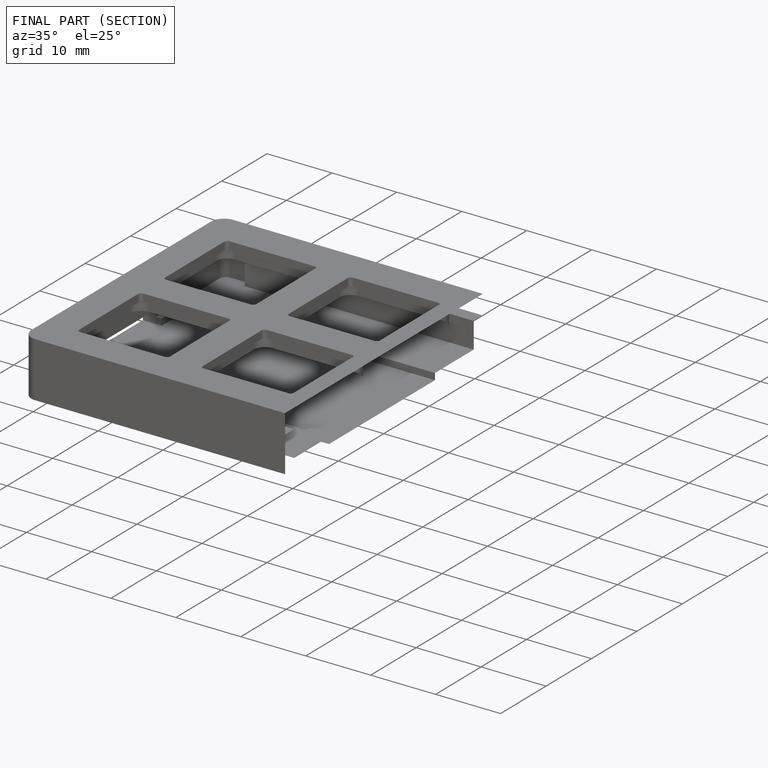
[diagram: finished part — half-section view (interior)]
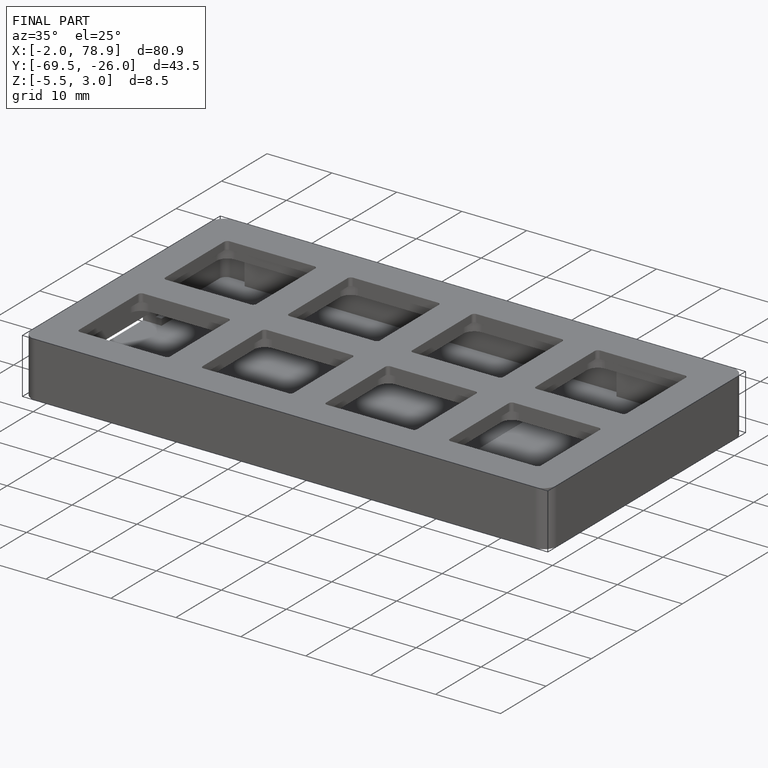
[diagram: finished part — iso view with bounding-box wireframe]
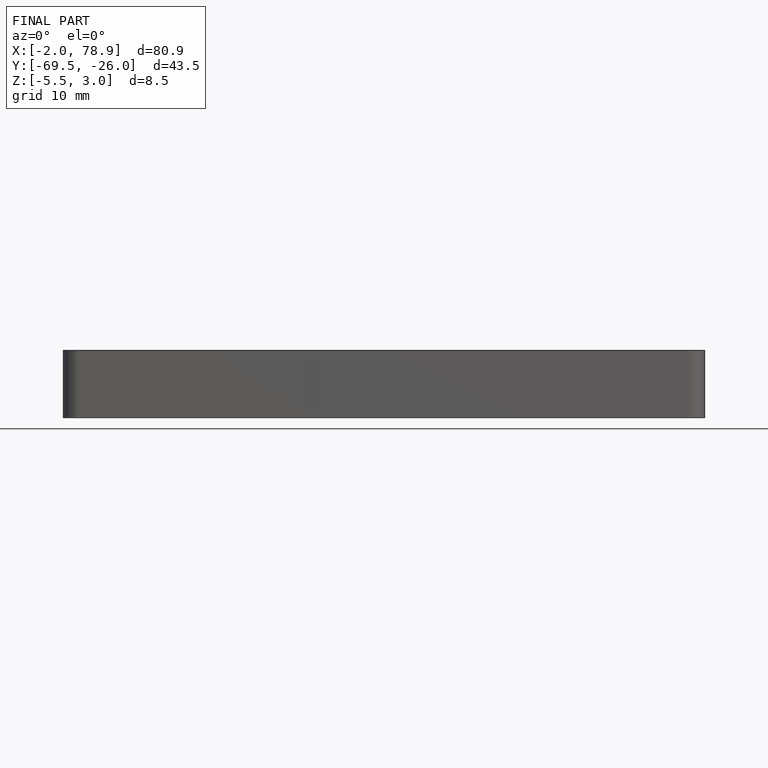
[diagram: finished part — front view with bounding-box wireframe]
